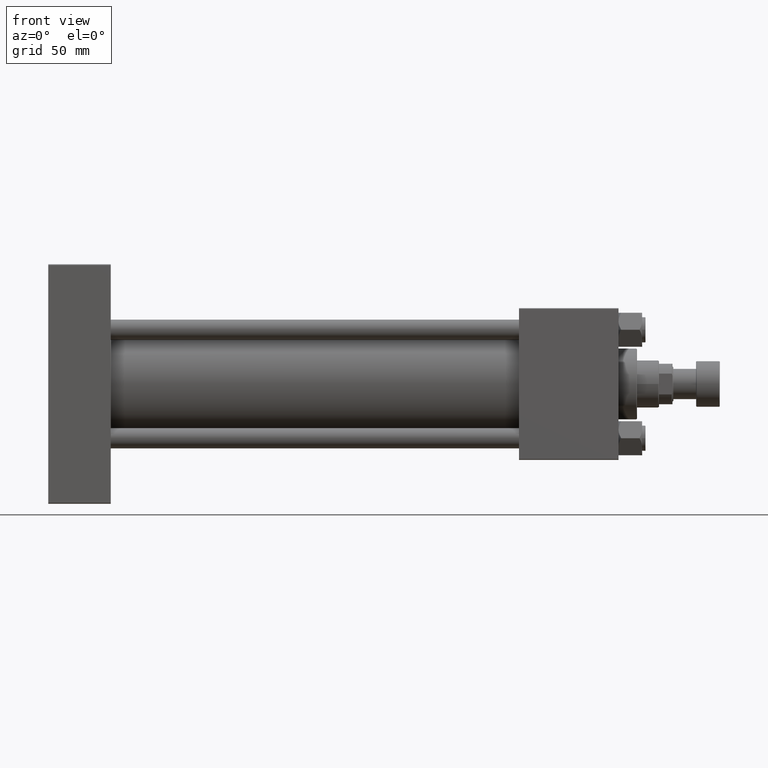
[diagram: clean part render]
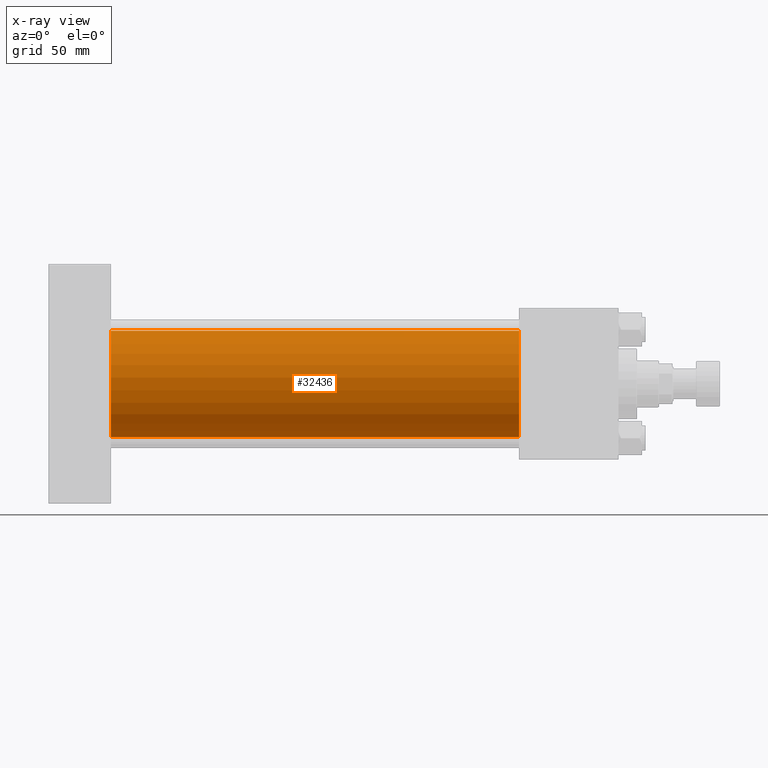
[diagram: x-ray — body ghosted, one internal face saturated and labeled with its STEP entity id]
A machine part, front view, then the same camera in x-ray: the body is ghosted and one INTERNAL B-rep face — a face not visible from any outside direction — is saturated and labeled: STEP entity #32436.
In plain terms, the highlighted cylindrical surface (partial cylindrical patch) has radius 31.5 mm, axis along (-1, -0, -0).
Its self-contained STEP definition (entity closure, byte-faithful):
#867 = CARTESIAN_POINT ( 'NONE',  ( 278.9999999999999432, -2.602085213965210642E-15, 0.000000000000000000 ) ) ;
#2370 = LINE ( 'NONE', #18566, #36955 ) ;
#4484 = DIRECTION ( 'NONE',  ( -1.000000000000000000, -0.000000000000000000, -0.000000000000000000 ) ) ;
#4614 = CARTESIAN_POINT ( 'NONE',  ( 37.00000000000000000, 1.255552203348951850E-15, -31.50000000000000000 ) ) ;
#6094 = DIRECTION ( 'NONE',  ( -1.000000000000000000, -0.000000000000000000, -0.000000000000000000 ) ) ;
#7143 = EDGE_CURVE ( 'NONE', #41191, #15897, #35938, .T. ) ;
#8220 = CYLINDRICAL_SURFACE ( 'NONE', #30076, 31.50000000000000000 ) ;
#13087 = DIRECTION ( 'NONE',  ( 1.000000000000000000, 0.000000000000000000, 0.000000000000000000 ) ) ;
#13585 = ORIENTED_EDGE ( 'NONE', *, *, #31142, .F. ) ;
#15897 = VERTEX_POINT ( 'NONE', #36762 ) ;
#18410 = CARTESIAN_POINT ( 'NONE',  ( 37.00000000000000000, -2.602085213965210642E-15, 31.50000000000000000 ) ) ;
#18566 = CARTESIAN_POINT ( 'NONE',  ( 278.9999999999999432, -2.602085213965210642E-15, 31.50000000000000000 ) ) ;
#19562 = ORIENTED_EDGE ( 'NONE', *, *, #45519, .F. ) ;
#20687 = DIRECTION ( 'NONE',  ( 0.000000000000000000, 0.000000000000000000, 1.000000000000000000 ) ) ;
#23655 = AXIS2_PLACEMENT_3D ( 'NONE', #40026, #27546, #48002 ) ;
#24830 = EDGE_LOOP ( 'NONE', ( #25176, #30821, #19562, #13585 ) ) ;
#25176 = ORIENTED_EDGE ( 'NONE', *, *, #7143, .T. ) ;
#27546 = DIRECTION ( 'NONE',  ( 1.000000000000000000, 0.000000000000000000, 0.000000000000000000 ) ) ;
#30076 = AXIS2_PLACEMENT_3D ( 'NONE', #45118, #4484, #20687 ) ;
#30821 = ORIENTED_EDGE ( 'NONE', *, *, #38241, .T. ) ;
#31142 = EDGE_CURVE ( 'NONE', #41191, #49216, #2370, .T. ) ;
#31495 = DIRECTION ( 'NONE',  ( -1.000000000000000000, -0.000000000000000000, -0.000000000000000000 ) ) ;
#32197 = VERTEX_POINT ( 'NONE', #4614 ) ;
#32436 = ADVANCED_FACE ( 'NONE', ( #44594 ), #8220, .F. ) ;
#33020 = DIRECTION ( 'NONE',  ( 0.000000000000000000, 0.000000000000000000, -1.000000000000000000 ) ) ;
#33380 = AXIS2_PLACEMENT_3D ( 'NONE', #867, #13087, #33020 ) ;
#33716 = CARTESIAN_POINT ( 'NONE',  ( 278.9999999999999432, -2.602085213965210642E-15, 31.50000000000000000 ) ) ;
#34544 = VECTOR ( 'NONE', #31495, 1000.000000000000000 ) ;
#35488 = LINE ( 'NONE', #51709, #34544 ) ;
#35938 = CIRCLE ( 'NONE', #33380, 31.50000000000000000 ) ;
#36762 = CARTESIAN_POINT ( 'NONE',  ( 278.9999999999999432, 1.255552203348951850E-15, -31.50000000000000000 ) ) ;
#36955 = VECTOR ( 'NONE', #6094, 1000.000000000000000 ) ;
#38241 = EDGE_CURVE ( 'NONE', #15897, #32197, #35488, .T. ) ;
#40026 = CARTESIAN_POINT ( 'NONE',  ( 37.00000000000000000, -2.602085213965210642E-15, 0.000000000000000000 ) ) ;
#41191 = VERTEX_POINT ( 'NONE', #33716 ) ;
#44594 = FACE_OUTER_BOUND ( 'NONE', #24830, .T. ) ;
#45118 = CARTESIAN_POINT ( 'NONE',  ( 278.9999999999999432, -2.602085213965210642E-15, 0.000000000000000000 ) ) ;
#45519 = EDGE_CURVE ( 'NONE', #49216, #32197, #50825, .T. ) ;
#48002 = DIRECTION ( 'NONE',  ( 0.000000000000000000, 0.000000000000000000, -1.000000000000000000 ) ) ;
#49216 = VERTEX_POINT ( 'NONE', #18410 ) ;
#50825 = CIRCLE ( 'NONE', #23655, 31.50000000000000000 ) ;
#51709 = CARTESIAN_POINT ( 'NONE',  ( 278.9999999999999432, 1.255552203348951850E-15, -31.50000000000000000 ) ) ;